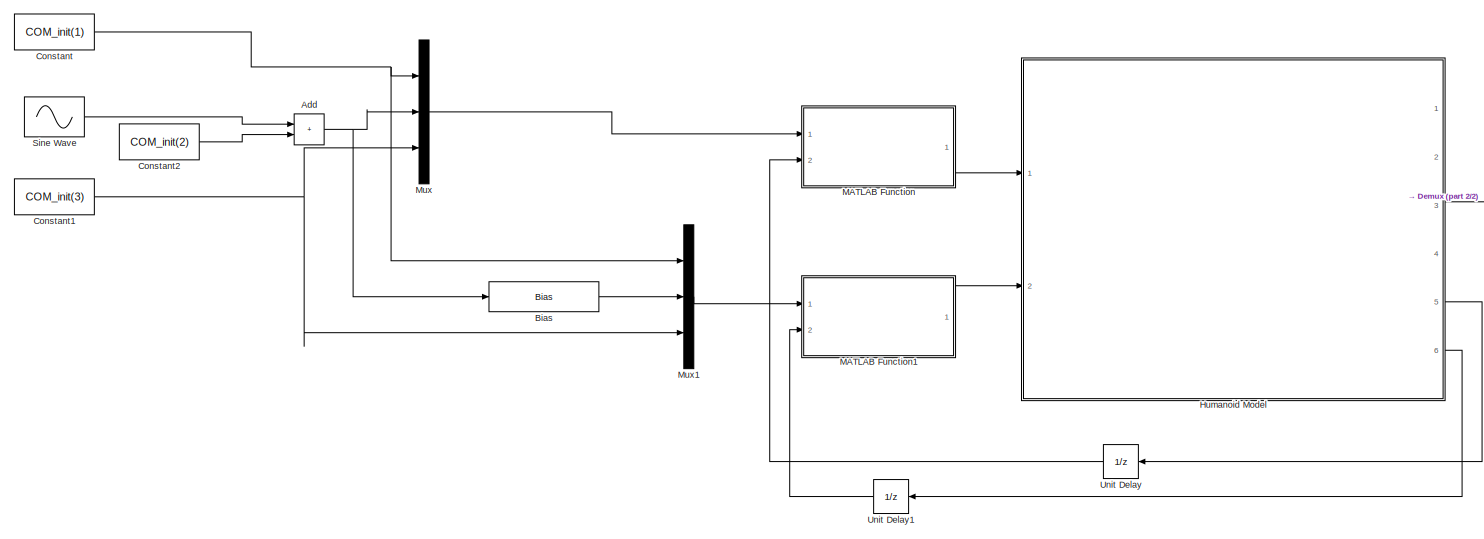
[diagram: root canvas - part 1/2, most of the canvas]
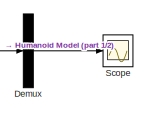
[diagram: root canvas - part 2/2, middle right region]
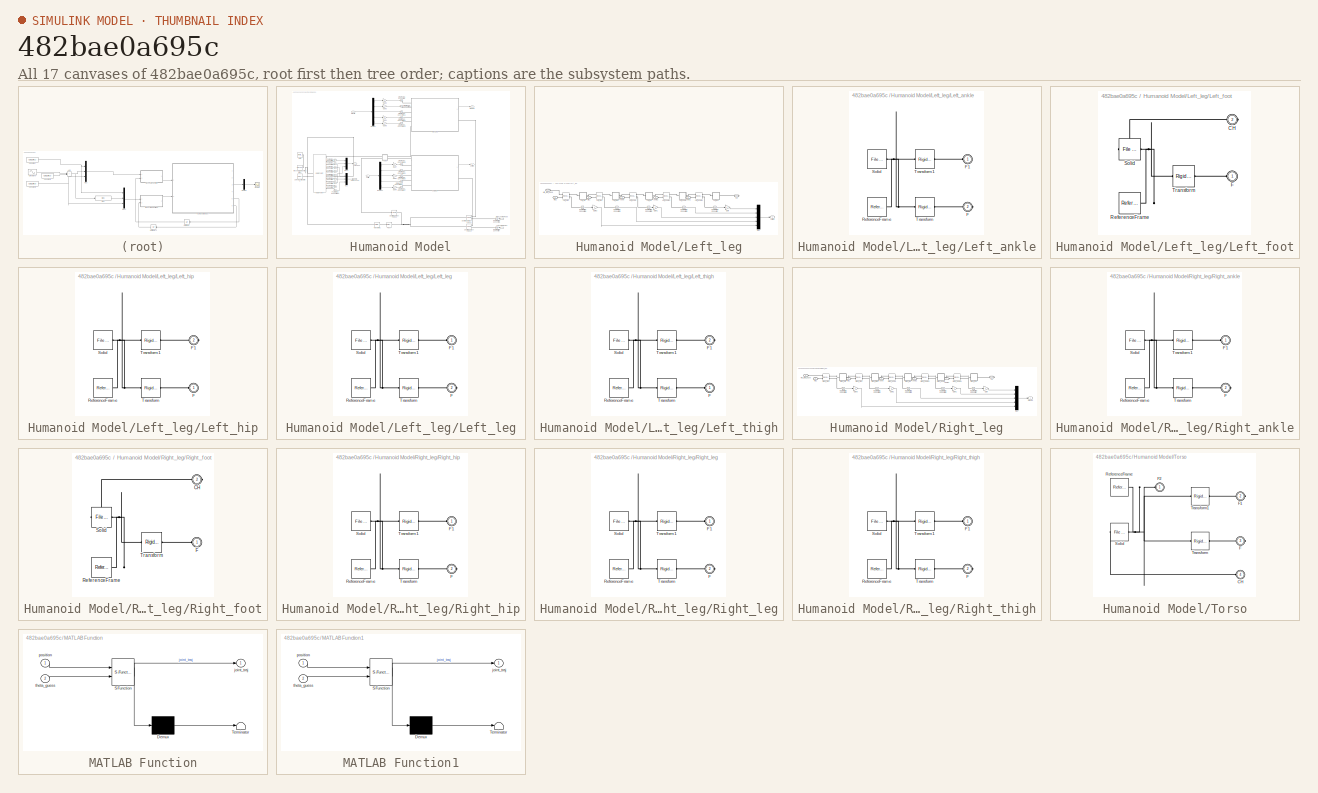
[diagram: thumbnail index - all 17 canvases of the model, root first then tree order]
MODEL slx_482bae0a695c
KIND model
CONFIG AbsTol = auto
CONFIG EnableMultiTasking = off
CONFIG FixedStep = 1e-3
CONFIG InitFcn = samanoid_init;
CONFIG MaxStep = auto
CONFIG MinStep = auto
CONFIG RelTol = 1e-3
CONFIG SampleTimeConstraint = Unconstrained
CONFIG SolverName = FixedStepAuto
CONFIG StartTime = 0.0
CONFIG StopTime = 10.0
WORKSPACE source: external: MATLAB File  (data not in archive)
BLOCK [Sum] Add
  IconShape = rectangular
  Ports = [2, 1]
BLOCK [Bias] Bias
  Bias = -2*COM_init(2)
  SaturateOnIntegerOverflow = off
BLOCK [Constant] Constant
  Value = COM_init(1)
BLOCK [Constant] Constant1
  Value = COM_init(3)
BLOCK [Constant] Constant2
  Value = COM_init(2)
BLOCK [Demux] Demux
  Outputs = 3
  Ports = [1, 3]
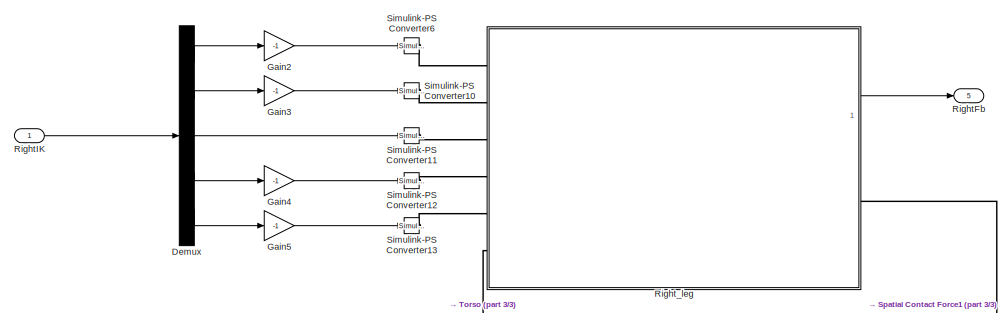
[diagram: Humanoid Model - part 1/3, top center region]
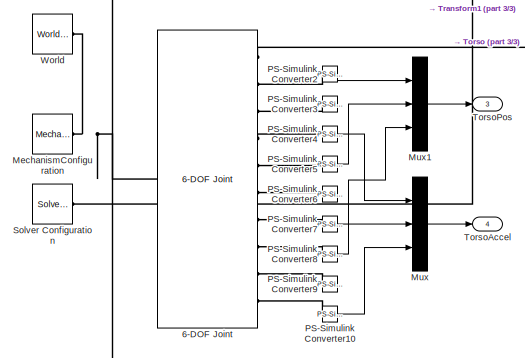
[diagram: Humanoid Model - part 2/3, middle left region]
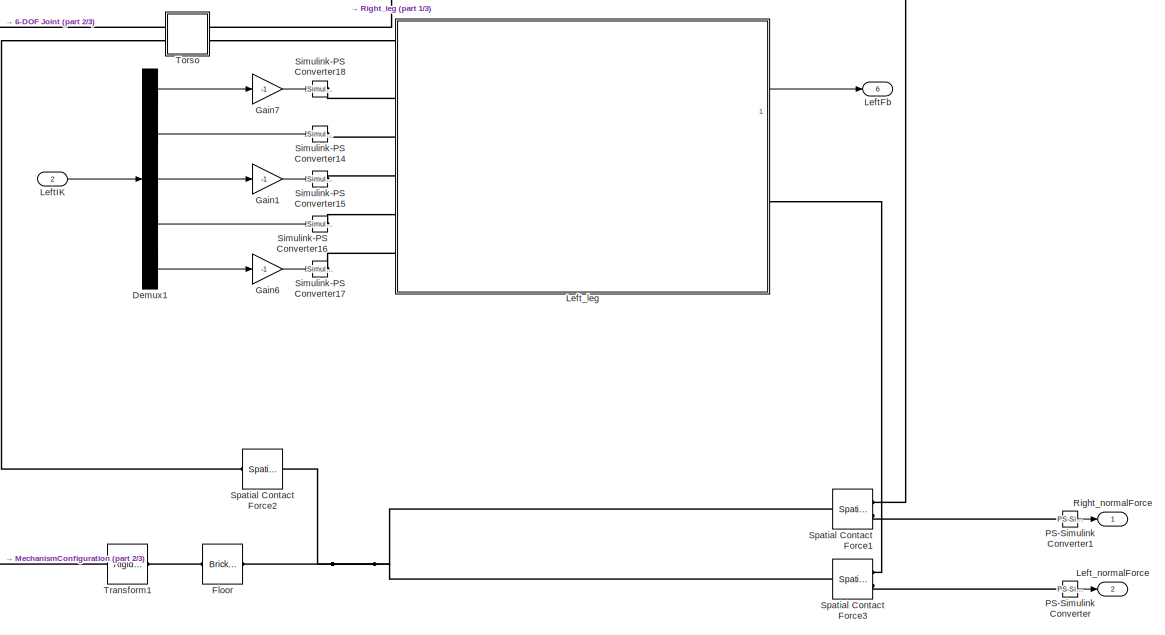
[diagram: Humanoid Model - part 3/3, bottom center region]
BLOCK [SubSystem] Humanoid Model
  Ports = [2, 6]
  RequestExecContextInheritance = off
BLOCK [Reference] Humanoid Model/6-DOF Joint  REF=sm_lib/Joints/6-DOF Joint
  Ports = [0, 0, 0, 0, 0, 1, 10]
  SourceBlock = sm_lib/Joints/6-DOF Joint
  SourceProductBaseCode = MS
  SourceType = 6-DOF Joint
BLOCK [Demux] Humanoid Model/Demux
  Outputs = 5
  Ports = [1, 5]
BLOCK [Demux] Humanoid Model/Demux1
  Outputs = 5
  Ports = [1, 5]
BLOCK [Reference] Humanoid Model/Floor  REF=sm_lib/Body Elements/Brick Solid
  NameLocation = top
  Ports = [0, 0, 0, 0, 0, 1, 1]
  SourceBlock = sm_lib/Body Elements/Brick Solid
  SourceProductBaseCode = MS
  SourceType = Brick Solid
BLOCK [Gain] Humanoid Model/Gain1
  Gain = -1
BLOCK [Gain] Humanoid Model/Gain2
  Gain = -1
BLOCK [Gain] Humanoid Model/Gain3
  Gain = -1
BLOCK [Gain] Humanoid Model/Gain4
  Gain = -1
BLOCK [Gain] Humanoid Model/Gain5
  Gain = -1
BLOCK [Gain] Humanoid Model/Gain6
  Gain = -1
BLOCK [Gain] Humanoid Model/Gain7
  Gain = -1
BLOCK [Outport] Humanoid Model/LeftFb
  Port = 6
BLOCK [Inport] Humanoid Model/LeftIK
  Port = 2
BLOCK [SubSystem] Humanoid Model/Left_leg
  Ports = [0, 1, 0, 0, 0, 6, 1]
  RequestExecContextInheritance = off
BLOCK [PMIOPort] Humanoid Model/Left_leg/Ankle1
  Port = 2
  Side = Left
BLOCK [PMIOPort] Humanoid Model/Left_leg/Ankle2
  Port = 3
  Side = Left
BLOCK [PMIOPort] Humanoid Model/Left_leg/CH
  NameLocation = top
  Port = 7
  Side = Right
BLOCK [Gain] Humanoid Model/Left_leg/Gain
  Gain = -1
BLOCK [Gain] Humanoid Model/Left_leg/Gain1
  Gain = -1
BLOCK [Gain] Humanoid Model/Left_leg/Gain3
  Gain = -1
BLOCK [PMIOPort] Humanoid Model/Left_leg/Hip1
  Port = 5
  Side = Left
BLOCK [PMIOPort] Humanoid Model/Left_leg/Hip2
  Port = 6
  Side = Left
BLOCK [PMIOPort] Humanoid Model/Left_leg/Hip_joint_base
  Side = Left
BLOCK [PMIOPort] Humanoid Model/Left_leg/Knee
  Port = 4
  Side = Left
BLOCK [Outport] Humanoid Model/Left_leg/LeftFb
BLOCK [SubSystem] Humanoid Model/Left_leg/Left_ankle
  Ports = [0, 0, 0, 0, 0, 1, 1]
  RequestExecContextInheritance = off
BLOCK [PMIOPort] Humanoid Model/Left_leg/Left_ankle/F
  Port = 2
  Side = Right
BLOCK [PMIOPort] Humanoid Model/Left_leg/Left_ankle/F1
  Side = Left
BLOCK [Reference] Humanoid Model/Left_leg/Left_ankle/ReferenceFrame  REF=sm_lib/Frames and
Transforms/Reference
Frame
  Ports = [0, 0, 0, 0, 0, 0, 1]
  SourceBlock = sm_lib/Frames and\nTransforms/Reference\nFrame
  SourceProductBaseCode = MS
  SourceType = Reference\nFrame
BLOCK [Reference] Humanoid Model/Left_leg/Left_ankle/Solid  REF=sm_lib/Body Elements/File Solid
  Ports = [0, 0, 0, 0, 0, 0, 1]
  SourceBlock = sm_lib/Body Elements/File Solid
  SourceProductBaseCode = MS
  SourceType = File Solid
BLOCK [Reference] Humanoid Model/Left_leg/Left_ankle/Transform  REF=sm_lib/Frames and
Transforms/Rigid
Transform
  Ports = [0, 0, 0, 0, 0, 1, 1]
  SourceBlock = sm_lib/Frames and\nTransforms/Rigid\nTransform
  SourceProductBaseCode = MS
  SourceType = Rigid\nTransform
BLOCK [Reference] Humanoid Model/Left_leg/Left_ankle/Transform1  REF=sm_lib/Frames and
Transforms/Rigid
Transform
  Ports = [0, 0, 0, 0, 0, 1, 1]
  SourceBlock = sm_lib/Frames and\nTransforms/Rigid\nTransform
  SourceProductBaseCode = MS
  SourceType = Rigid\nTransform
BLOCK [Reference] Humanoid Model/Left_leg/Left_ankle1  REF=sm_lib/Joints/Revolute Joint
  Ports = [0, 0, 0, 0, 0, 2, 2]
  SourceBlock = sm_lib/Joints/Revolute Joint
  SourceProductBaseCode = MS
  SourceType = Revolute Joint
BLOCK [Reference] Humanoid Model/Left_leg/Left_ankle2  REF=sm_lib/Joints/Revolute Joint
  Ports = [0, 0, 0, 0, 0, 2, 2]
  SourceBlock = sm_lib/Joints/Revolute Joint
  SourceProductBaseCode = MS
  SourceType = Revolute Joint
BLOCK [SubSystem] Humanoid Model/Left_leg/Left_foot
  Ports = [0, 0, 0, 0, 0, 1, 1]
  RequestExecContextInheritance = off
BLOCK [PMIOPort] Humanoid Model/Left_leg/Left_foot/CH
  Port = 2
  Side = Right
BLOCK [PMIOPort] Humanoid Model/Left_leg/Left_foot/F
  Side = Left
BLOCK [Reference] Humanoid Model/Left_leg/Left_foot/ReferenceFrame  REF=sm_lib/Frames and
Transforms/Reference
Frame
  Ports = [0, 0, 0, 0, 0, 0, 1]
  SourceBlock = sm_lib/Frames and\nTransforms/Reference\nFrame
  SourceProductBaseCode = MS
  SourceType = Reference\nFrame
BLOCK [Reference] Humanoid Model/Left_leg/Left_foot/Solid  REF=sm_lib/Body Elements/File Solid
  Ports = [0, 0, 0, 0, 0, 1, 1]
  SourceBlock = sm_lib/Body Elements/File Solid
  SourceProductBaseCode = MS
  SourceType = File Solid
BLOCK [Reference] Humanoid Model/Left_leg/Left_foot/Transform  REF=sm_lib/Frames and
Transforms/Rigid
Transform
  Ports = [0, 0, 0, 0, 0, 1, 1]
  SourceBlock = sm_lib/Frames and\nTransforms/Rigid\nTransform
  SourceProductBaseCode = MS
  SourceType = Rigid\nTransform
BLOCK [SubSystem] Humanoid Model/Left_leg/Left_hip
  Ports = [0, 0, 0, 0, 0, 1, 1]
  RequestExecContextInheritance = off
BLOCK [PMIOPort] Humanoid Model/Left_leg/Left_hip/F
  Side = Left
BLOCK [PMIOPort] Humanoid Model/Left_leg/Left_hip/F1
  Port = 2
  Side = Right
BLOCK [Reference] Humanoid Model/Left_leg/Left_hip/ReferenceFrame  REF=sm_lib/Frames and
Transforms/Reference
Frame
  Ports = [0, 0, 0, 0, 0, 0, 1]
  SourceBlock = sm_lib/Frames and\nTransforms/Reference\nFrame
  SourceProductBaseCode = MS
  SourceType = Reference\nFrame
BLOCK [Reference] Humanoid Model/Left_leg/Left_hip/Solid  REF=sm_lib/Body Elements/File Solid
  Ports = [0, 0, 0, 0, 0, 0, 1]
  SourceBlock = sm_lib/Body Elements/File Solid
  SourceProductBaseCode = MS
  SourceType = File Solid
BLOCK [Reference] Humanoid Model/Left_leg/Left_hip/Transform  REF=sm_lib/Frames and
Transforms/Rigid
Transform
  Ports = [0, 0, 0, 0, 0, 1, 1]
  SourceBlock = sm_lib/Frames and\nTransforms/Rigid\nTransform
  SourceProductBaseCode = MS
  SourceType = Rigid\nTransform
BLOCK [Reference] Humanoid Model/Left_leg/Left_hip/Transform1  REF=sm_lib/Frames and
Transforms/Rigid
Transform
  Ports = [0, 0, 0, 0, 0, 1, 1]
  SourceBlock = sm_lib/Frames and\nTransforms/Rigid\nTransform
  SourceProductBaseCode = MS
  SourceType = Rigid\nTransform
BLOCK [Reference] Humanoid Model/Left_leg/Left_hip1  REF=sm_lib/Joints/Revolute Joint
  Ports = [0, 0, 0, 0, 0, 2, 2]
  SourceBlock = sm_lib/Joints/Revolute Joint
  SourceProductBaseCode = MS
  SourceType = Revolute Joint
BLOCK [Reference] Humanoid Model/Left_leg/Left_hip2  REF=sm_lib/Joints/Revolute Joint
  Ports = [0, 0, 0, 0, 0, 2, 2]
  SourceBlock = sm_lib/Joints/Revolute Joint
  SourceProductBaseCode = MS
  SourceType = Revolute Joint
BLOCK [Reference] Humanoid Model/Left_leg/Left_knee  REF=sm_lib/Joints/Revolute Joint
  Ports = [0, 0, 0, 0, 0, 2, 2]
  SourceBlock = sm_lib/Joints/Revolute Joint
  SourceProductBaseCode = MS
  SourceType = Revolute Joint
BLOCK [SubSystem] Humanoid Model/Left_leg/Left_leg
  Ports = [0, 0, 0, 0, 0, 1, 1]
  RequestExecContextInheritance = off
BLOCK [PMIOPort] Humanoid Model/Left_leg/Left_leg/F
  Port = 2
  Side = Right
BLOCK [PMIOPort] Humanoid Model/Left_leg/Left_leg/F1
  Side = Left
BLOCK [Reference] Humanoid Model/Left_leg/Left_leg/ReferenceFrame  REF=sm_lib/Frames and
Transforms/Reference
Frame
  Ports = [0, 0, 0, 0, 0, 0, 1]
  SourceBlock = sm_lib/Frames and\nTransforms/Reference\nFrame
  SourceProductBaseCode = MS
  SourceType = Reference\nFrame
BLOCK [Reference] Humanoid Model/Left_leg/Left_leg/Solid  REF=sm_lib/Body Elements/File Solid
  Ports = [0, 0, 0, 0, 0, 0, 1]
  SourceBlock = sm_lib/Body Elements/File Solid
  SourceProductBaseCode = MS
  SourceType = File Solid
BLOCK [Reference] Humanoid Model/Left_leg/Left_leg/Transform  REF=sm_lib/Frames and
Transforms/Rigid
Transform
  Ports = [0, 0, 0, 0, 0, 1, 1]
  SourceBlock = sm_lib/Frames and\nTransforms/Rigid\nTransform
  SourceProductBaseCode = MS
  SourceType = Rigid\nTransform
BLOCK [Reference] Humanoid Model/Left_leg/Left_leg/Transform1  REF=sm_lib/Frames and
Transforms/Rigid
Transform
  Ports = [0, 0, 0, 0, 0, 1, 1]
  SourceBlock = sm_lib/Frames and\nTransforms/Rigid\nTransform
  SourceProductBaseCode = MS
  SourceType = Rigid\nTransform
BLOCK [SubSystem] Humanoid Model/Left_leg/Left_thigh
  Ports = [0, 0, 0, 0, 0, 1, 1]
  RequestExecContextInheritance = off
BLOCK [PMIOPort] Humanoid Model/Left_leg/Left_thigh/F
  Side = Left
BLOCK [PMIOPort] Humanoid Model/Left_leg/Left_thigh/F1
  Port = 2
  Side = Right
BLOCK [Reference] Humanoid Model/Left_leg/Left_thigh/ReferenceFrame  REF=sm_lib/Frames and
Transforms/Reference
Frame
  Ports = [0, 0, 0, 0, 0, 0, 1]
  SourceBlock = sm_lib/Frames and\nTransforms/Reference\nFrame
  SourceProductBaseCode = MS
  SourceType = Reference\nFrame
BLOCK [Reference] Humanoid Model/Left_leg/Left_thigh/Solid  REF=sm_lib/Body Elements/File Solid
  Ports = [0, 0, 0, 0, 0, 0, 1]
  SourceBlock = sm_lib/Body Elements/File Solid
  SourceProductBaseCode = MS
  SourceType = File Solid
BLOCK [Reference] Humanoid Model/Left_leg/Left_thigh/Transform  REF=sm_lib/Frames and
Transforms/Rigid
Transform
  Ports = [0, 0, 0, 0, 0, 1, 1]
  SourceBlock = sm_lib/Frames and\nTransforms/Rigid\nTransform
  SourceProductBaseCode = MS
  SourceType = Rigid\nTransform
BLOCK [Reference] Humanoid Model/Left_leg/Left_thigh/Transform1  REF=sm_lib/Frames and
Transforms/Rigid
Transform
  Ports = [0, 0, 0, 0, 0, 1, 1]
  SourceBlock = sm_lib/Frames and\nTransforms/Rigid\nTransform
  SourceProductBaseCode = MS
  SourceType = Rigid\nTransform
BLOCK [Mux] Humanoid Model/Left_leg/Mux
  DisplayOption = bar
  Inputs = 5
  Ports = [5, 1]
BLOCK [Reference] Humanoid Model/Left_leg/PS-Simulink Converter  REF=nesl_utility/PS-Simulink
Converter
  Ports = [0, 1, 0, 0, 0, 1]
  SourceBlock = nesl_utility/PS-Simulink\nConverter
  SourceProductBaseCode = SS,PW,VE
  SourceType = PS-Simulink\nConverter
BLOCK [Reference] Humanoid Model/Left_leg/PS-Simulink Converter1  REF=nesl_utility/PS-Simulink
Converter
  Ports = [0, 1, 0, 0, 0, 1]
  SourceBlock = nesl_utility/PS-Simulink\nConverter
  SourceProductBaseCode = SS,PW,VE
  SourceType = PS-Simulink\nConverter
BLOCK [Reference] Humanoid Model/Left_leg/PS-Simulink Converter2  REF=nesl_utility/PS-Simulink
Converter
  Ports = [0, 1, 0, 0, 0, 1]
  SourceBlock = nesl_utility/PS-Simulink\nConverter
  SourceProductBaseCode = SS,PW,VE
  SourceType = PS-Simulink\nConverter
BLOCK [Reference] Humanoid Model/Left_leg/PS-Simulink Converter3  REF=nesl_utility/PS-Simulink
Converter
  Ports = [0, 1, 0, 0, 0, 1]
  SourceBlock = nesl_utility/PS-Simulink\nConverter
  SourceProductBaseCode = SS,PW,VE
  SourceType = PS-Simulink\nConverter
BLOCK [Reference] Humanoid Model/Left_leg/PS-Simulink Converter4  REF=nesl_utility/PS-Simulink
Converter
  Ports = [0, 1, 0, 0, 0, 1]
  SourceBlock = nesl_utility/PS-Simulink\nConverter
  SourceProductBaseCode = SS,PW,VE
  SourceType = PS-Simulink\nConverter
BLOCK [Outport] Humanoid Model/Left_normalForce
  Port = 2
BLOCK [Reference] Humanoid Model/MechanismConfiguration  REF=sm_lib/Utilities/Mechanism
Configuration
  Ports = [0, 0, 0, 0, 0, 0, 1]
  SourceBlock = sm_lib/Utilities/Mechanism\nConfiguration
  SourceProductBaseCode = MS
  SourceType = Mechanism\nConfiguration
BLOCK [Mux] Humanoid Model/Mux
  DisplayOption = bar
  Inputs = 3
  Ports = [3, 1]
BLOCK [Mux] Humanoid Model/Mux1
  DisplayOption = bar
  Inputs = 3
  Ports = [3, 1]
BLOCK [Reference] Humanoid Model/PS-Simulink Converter  REF=nesl_utility/PS-Simulink
Converter
  Ports = [0, 1, 0, 0, 0, 1]
  SourceBlock = nesl_utility/PS-Simulink\nConverter
  SourceProductBaseCode = SS,PW,VE
  SourceType = PS-Simulink\nConverter
BLOCK [Reference] Humanoid Model/PS-Simulink Converter1  REF=nesl_utility/PS-Simulink
Converter
  Ports = [0, 1, 0, 0, 0, 1]
  SourceBlock = nesl_utility/PS-Simulink\nConverter
  SourceProductBaseCode = SS,PW,VE
  SourceType = PS-Simulink\nConverter
BLOCK [Reference] Humanoid Model/PS-Simulink Converter10  REF=nesl_utility/PS-Simulink
Converter
  Ports = [0, 1, 0, 0, 0, 1]
  SourceBlock = nesl_utility/PS-Simulink\nConverter
  SourceProductBaseCode = SS,PW,VE
  SourceType = PS-Simulink\nConverter
BLOCK [Reference] Humanoid Model/PS-Simulink Converter2  REF=nesl_utility/PS-Simulink
Converter
  Ports = [0, 1, 0, 0, 0, 1]
  SourceBlock = nesl_utility/PS-Simulink\nConverter
  SourceProductBaseCode = SS,PW,VE
  SourceType = PS-Simulink\nConverter
BLOCK [Reference] Humanoid Model/PS-Simulink Converter3  REF=nesl_utility/PS-Simulink
Converter
  Ports = [0, 1, 0, 0, 0, 1]
  SourceBlock = nesl_utility/PS-Simulink\nConverter
  SourceProductBaseCode = SS,PW,VE
  SourceType = PS-Simulink\nConverter
BLOCK [Reference] Humanoid Model/PS-Simulink Converter4  REF=nesl_utility/PS-Simulink
Converter
  Ports = [0, 1, 0, 0, 0, 1]
  SourceBlock = nesl_utility/PS-Simulink\nConverter
  SourceProductBaseCode = SS,PW,VE
  SourceType = PS-Simulink\nConverter
BLOCK [Reference] Humanoid Model/PS-Simulink Converter5  REF=nesl_utility/PS-Simulink
Converter
  Ports = [0, 1, 0, 0, 0, 1]
  SourceBlock = nesl_utility/PS-Simulink\nConverter
  SourceProductBaseCode = SS,PW,VE
  SourceType = PS-Simulink\nConverter
BLOCK [Reference] Humanoid Model/PS-Simulink Converter6  REF=nesl_utility/PS-Simulink
Converter
  Ports = [0, 1, 0, 0, 0, 1]
  SourceBlock = nesl_utility/PS-Simulink\nConverter
  SourceProductBaseCode = SS,PW,VE
  SourceType = PS-Simulink\nConverter
BLOCK [Reference] Humanoid Model/PS-Simulink Converter7  REF=nesl_utility/PS-Simulink
Converter
  Ports = [0, 1, 0, 0, 0, 1]
  SourceBlock = nesl_utility/PS-Simulink\nConverter
  SourceProductBaseCode = SS,PW,VE
  SourceType = PS-Simulink\nConverter
BLOCK [Reference] Humanoid Model/PS-Simulink Converter8  REF=nesl_utility/PS-Simulink
Converter
  Ports = [0, 1, 0, 0, 0, 1]
  SourceBlock = nesl_utility/PS-Simulink\nConverter
  SourceProductBaseCode = SS,PW,VE
  SourceType = PS-Simulink\nConverter
BLOCK [Reference] Humanoid Model/PS-Simulink Converter9  REF=nesl_utility/PS-Simulink
Converter
  Ports = [0, 1, 0, 0, 0, 1]
  SourceBlock = nesl_utility/PS-Simulink\nConverter
  SourceProductBaseCode = SS,PW,VE
  SourceType = PS-Simulink\nConverter
BLOCK [Outport] Humanoid Model/RightFb
  Port = 5
BLOCK [Inport] Humanoid Model/RightIK
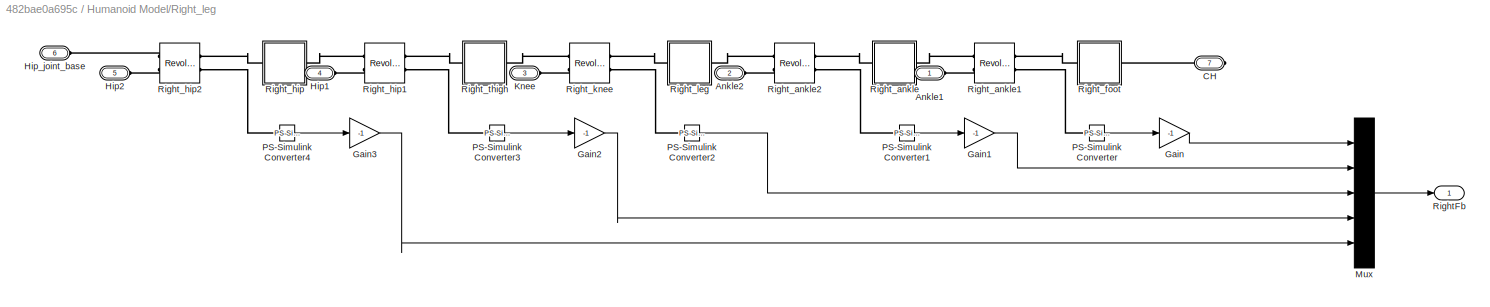
BLOCK [SubSystem] Humanoid Model/Right_leg
  Ports = [0, 1, 0, 0, 0, 6, 1]
  RequestExecContextInheritance = off
BLOCK [PMIOPort] Humanoid Model/Right_leg/Ankle1
  Side = Left
BLOCK [PMIOPort] Humanoid Model/Right_leg/Ankle2
  Port = 2
  Side = Left
BLOCK [PMIOPort] Humanoid Model/Right_leg/CH
  NameLocation = top
  Port = 7
  Side = Right
BLOCK [Gain] Humanoid Model/Right_leg/Gain
  Gain = -1
BLOCK [Gain] Humanoid Model/Right_leg/Gain1
  Gain = -1
BLOCK [Gain] Humanoid Model/Right_leg/Gain2
  Gain = -1
BLOCK [Gain] Humanoid Model/Right_leg/Gain3
  Gain = -1
BLOCK [PMIOPort] Humanoid Model/Right_leg/Hip1
  Port = 4
  Side = Left
BLOCK [PMIOPort] Humanoid Model/Right_leg/Hip2
  Port = 5
  Side = Left
BLOCK [PMIOPort] Humanoid Model/Right_leg/Hip_joint_base
  Port = 6
  Side = Left
BLOCK [PMIOPort] Humanoid Model/Right_leg/Knee
  Port = 3
  Side = Left
BLOCK [Mux] Humanoid Model/Right_leg/Mux
  DisplayOption = bar
  Inputs = 5
  Ports = [5, 1]
BLOCK [Reference] Humanoid Model/Right_leg/PS-Simulink Converter  REF=nesl_utility/PS-Simulink
Converter
  Ports = [0, 1, 0, 0, 0, 1]
  SourceBlock = nesl_utility/PS-Simulink\nConverter
  SourceProductBaseCode = SS,PW,VE
  SourceType = PS-Simulink\nConverter
BLOCK [Reference] Humanoid Model/Right_leg/PS-Simulink Converter1  REF=nesl_utility/PS-Simulink
Converter
  Ports = [0, 1, 0, 0, 0, 1]
  SourceBlock = nesl_utility/PS-Simulink\nConverter
  SourceProductBaseCode = SS,PW,VE
  SourceType = PS-Simulink\nConverter
BLOCK [Reference] Humanoid Model/Right_leg/PS-Simulink Converter2  REF=nesl_utility/PS-Simulink
Converter
  Ports = [0, 1, 0, 0, 0, 1]
  SourceBlock = nesl_utility/PS-Simulink\nConverter
  SourceProductBaseCode = SS,PW,VE
  SourceType = PS-Simulink\nConverter
BLOCK [Reference] Humanoid Model/Right_leg/PS-Simulink Converter3  REF=nesl_utility/PS-Simulink
Converter
  Ports = [0, 1, 0, 0, 0, 1]
  SourceBlock = nesl_utility/PS-Simulink\nConverter
  SourceProductBaseCode = SS,PW,VE
  SourceType = PS-Simulink\nConverter
BLOCK [Reference] Humanoid Model/Right_leg/PS-Simulink Converter4  REF=nesl_utility/PS-Simulink
Converter
  Ports = [0, 1, 0, 0, 0, 1]
  SourceBlock = nesl_utility/PS-Simulink\nConverter
  SourceProductBaseCode = SS,PW,VE
  SourceType = PS-Simulink\nConverter
BLOCK [Outport] Humanoid Model/Right_leg/RightFb
BLOCK [SubSystem] Humanoid Model/Right_leg/Right_ankle
  Ports = [0, 0, 0, 0, 0, 1, 1]
  RequestExecContextInheritance = off
BLOCK [PMIOPort] Humanoid Model/Right_leg/Right_ankle/F
  Port = 2
  Side = Right
BLOCK [PMIOPort] Humanoid Model/Right_leg/Right_ankle/F1
  Side = Left
BLOCK [Reference] Humanoid Model/Right_leg/Right_ankle/ReferenceFrame  REF=sm_lib/Frames and
Transforms/Reference
Frame
  Ports = [0, 0, 0, 0, 0, 0, 1]
  SourceBlock = sm_lib/Frames and\nTransforms/Reference\nFrame
  SourceProductBaseCode = MS
  SourceType = Reference\nFrame
BLOCK [Reference] Humanoid Model/Right_leg/Right_ankle/Solid  REF=sm_lib/Body Elements/File Solid
  Ports = [0, 0, 0, 0, 0, 0, 1]
  SourceBlock = sm_lib/Body Elements/File Solid
  SourceProductBaseCode = MS
  SourceType = File Solid
BLOCK [Reference] Humanoid Model/Right_leg/Right_ankle/Transform  REF=sm_lib/Frames and
Transforms/Rigid
Transform
  Ports = [0, 0, 0, 0, 0, 1, 1]
  SourceBlock = sm_lib/Frames and\nTransforms/Rigid\nTransform
  SourceProductBaseCode = MS
  SourceType = Rigid\nTransform
BLOCK [Reference] Humanoid Model/Right_leg/Right_ankle/Transform1  REF=sm_lib/Frames and
Transforms/Rigid
Transform
  Ports = [0, 0, 0, 0, 0, 1, 1]
  SourceBlock = sm_lib/Frames and\nTransforms/Rigid\nTransform
  SourceProductBaseCode = MS
  SourceType = Rigid\nTransform
BLOCK [Reference] Humanoid Model/Right_leg/Right_ankle1  REF=sm_lib/Joints/Revolute Joint
  Ports = [0, 0, 0, 0, 0, 2, 2]
  SourceBlock = sm_lib/Joints/Revolute Joint
  SourceProductBaseCode = MS
  SourceType = Revolute Joint
BLOCK [Reference] Humanoid Model/Right_leg/Right_ankle2  REF=sm_lib/Joints/Revolute Joint
  Ports = [0, 0, 0, 0, 0, 2, 2]
  SourceBlock = sm_lib/Joints/Revolute Joint
  SourceProductBaseCode = MS
  SourceType = Revolute Joint
BLOCK [SubSystem] Humanoid Model/Right_leg/Right_foot
  Ports = [0, 0, 0, 0, 0, 1, 1]
  RequestExecContextInheritance = off
BLOCK [PMIOPort] Humanoid Model/Right_leg/Right_foot/CH
  Port = 2
  Side = Right
BLOCK [PMIOPort] Humanoid Model/Right_leg/Right_foot/F
  Side = Left
BLOCK [Reference] Humanoid Model/Right_leg/Right_foot/ReferenceFrame  REF=sm_lib/Frames and
Transforms/Reference
Frame
  Ports = [0, 0, 0, 0, 0, 0, 1]
  SourceBlock = sm_lib/Frames and\nTransforms/Reference\nFrame
  SourceProductBaseCode = MS
  SourceType = Reference\nFrame
BLOCK [Reference] Humanoid Model/Right_leg/Right_foot/Solid  REF=sm_lib/Body Elements/File Solid
  Ports = [0, 0, 0, 0, 0, 1, 1]
  SourceBlock = sm_lib/Body Elements/File Solid
  SourceProductBaseCode = MS
  SourceType = File Solid
BLOCK [Reference] Humanoid Model/Right_leg/Right_foot/Transform  REF=sm_lib/Frames and
Transforms/Rigid
Transform
  Ports = [0, 0, 0, 0, 0, 1, 1]
  SourceBlock = sm_lib/Frames and\nTransforms/Rigid\nTransform
  SourceProductBaseCode = MS
  SourceType = Rigid\nTransform
BLOCK [SubSystem] Humanoid Model/Right_leg/Right_hip
  Ports = [0, 0, 0, 0, 0, 1, 1]
  RequestExecContextInheritance = off
BLOCK [PMIOPort] Humanoid Model/Right_leg/Right_hip/F
  Port = 2
  Side = Right
BLOCK [PMIOPort] Humanoid Model/Right_leg/Right_hip/F1
  Side = Left
BLOCK [Reference] Humanoid Model/Right_leg/Right_hip/ReferenceFrame  REF=sm_lib/Frames and
Transforms/Reference
Frame
  Ports = [0, 0, 0, 0, 0, 0, 1]
  SourceBlock = sm_lib/Frames and\nTransforms/Reference\nFrame
  SourceProductBaseCode = MS
  SourceType = Reference\nFrame
BLOCK [Reference] Humanoid Model/Right_leg/Right_hip/Solid  REF=sm_lib/Body Elements/File Solid
  Ports = [0, 0, 0, 0, 0, 0, 1]
  SourceBlock = sm_lib/Body Elements/File Solid
  SourceProductBaseCode = MS
  SourceType = File Solid
BLOCK [Reference] Humanoid Model/Right_leg/Right_hip/Transform  REF=sm_lib/Frames and
Transforms/Rigid
Transform
  Ports = [0, 0, 0, 0, 0, 1, 1]
  SourceBlock = sm_lib/Frames and\nTransforms/Rigid\nTransform
  SourceProductBaseCode = MS
  SourceType = Rigid\nTransform
BLOCK [Reference] Humanoid Model/Right_leg/Right_hip/Transform1  REF=sm_lib/Frames and
Transforms/Rigid
Transform
  Ports = [0, 0, 0, 0, 0, 1, 1]
  SourceBlock = sm_lib/Frames and\nTransforms/Rigid\nTransform
  SourceProductBaseCode = MS
  SourceType = Rigid\nTransform
BLOCK [Reference] Humanoid Model/Right_leg/Right_hip1  REF=sm_lib/Joints/Revolute Joint
  Ports = [0, 0, 0, 0, 0, 2, 2]
  SourceBlock = sm_lib/Joints/Revolute Joint
  SourceProductBaseCode = MS
  SourceType = Revolute Joint
BLOCK [Reference] Humanoid Model/Right_leg/Right_hip2  REF=sm_lib/Joints/Revolute Joint
  Ports = [0, 0, 0, 0, 0, 2, 2]
  SourceBlock = sm_lib/Joints/Revolute Joint
  SourceProductBaseCode = MS
  SourceType = Revolute Joint
BLOCK [Reference] Humanoid Model/Right_leg/Right_knee  REF=sm_lib/Joints/Revolute Joint
  Ports = [0, 0, 0, 0, 0, 2, 2]
  SourceBlock = sm_lib/Joints/Revolute Joint
  SourceProductBaseCode = MS
  SourceType = Revolute Joint
BLOCK [SubSystem] Humanoid Model/Right_leg/Right_leg
  Ports = [0, 0, 0, 0, 0, 1, 1]
  RequestExecContextInheritance = off
BLOCK [PMIOPort] Humanoid Model/Right_leg/Right_leg/F
  Port = 2
  Side = Right
BLOCK [PMIOPort] Humanoid Model/Right_leg/Right_leg/F1
  Side = Left
BLOCK [Reference] Humanoid Model/Right_leg/Right_leg/ReferenceFrame  REF=sm_lib/Frames and
Transforms/Reference
Frame
  Ports = [0, 0, 0, 0, 0, 0, 1]
  SourceBlock = sm_lib/Frames and\nTransforms/Reference\nFrame
  SourceProductBaseCode = MS
  SourceType = Reference\nFrame
BLOCK [Reference] Humanoid Model/Right_leg/Right_leg/Solid  REF=sm_lib/Body Elements/File Solid
  Ports = [0, 0, 0, 0, 0, 0, 1]
  SourceBlock = sm_lib/Body Elements/File Solid
  SourceProductBaseCode = MS
  SourceType = File Solid
BLOCK [Reference] Humanoid Model/Right_leg/Right_leg/Transform  REF=sm_lib/Frames and
Transforms/Rigid
Transform
  Ports = [0, 0, 0, 0, 0, 1, 1]
  SourceBlock = sm_lib/Frames and\nTransforms/Rigid\nTransform
  SourceProductBaseCode = MS
  SourceType = Rigid\nTransform
BLOCK [Reference] Humanoid Model/Right_leg/Right_leg/Transform1  REF=sm_lib/Frames and
Transforms/Rigid
Transform
  Ports = [0, 0, 0, 0, 0, 1, 1]
  SourceBlock = sm_lib/Frames and\nTransforms/Rigid\nTransform
  SourceProductBaseCode = MS
  SourceType = Rigid\nTransform
BLOCK [SubSystem] Humanoid Model/Right_leg/Right_thigh
  Ports = [0, 0, 0, 0, 0, 1, 1]
  RequestExecContextInheritance = off
BLOCK [PMIOPort] Humanoid Model/Right_leg/Right_thigh/F
  Port = 2
  Side = Right
BLOCK [PMIOPort] Humanoid Model/Right_leg/Right_thigh/F1
  Side = Left
BLOCK [Reference] Humanoid Model/Right_leg/Right_thigh/ReferenceFrame  REF=sm_lib/Frames and
Transforms/Reference
Frame
  Ports = [0, 0, 0, 0, 0, 0, 1]
  SourceBlock = sm_lib/Frames and\nTransforms/Reference\nFrame
  SourceProductBaseCode = MS
  SourceType = Reference\nFrame
BLOCK [Reference] Humanoid Model/Right_leg/Right_thigh/Solid  REF=sm_lib/Body Elements/File Solid
  Ports = [0, 0, 0, 0, 0, 0, 1]
  SourceBlock = sm_lib/Body Elements/File Solid
  SourceProductBaseCode = MS
  SourceType = File Solid
BLOCK [Reference] Humanoid Model/Right_leg/Right_thigh/Transform  REF=sm_lib/Frames and
Transforms/Rigid
Transform
  Ports = [0, 0, 0, 0, 0, 1, 1]
  SourceBlock = sm_lib/Frames and\nTransforms/Rigid\nTransform
  SourceProductBaseCode = MS
  SourceType = Rigid\nTransform
BLOCK [Reference] Humanoid Model/Right_leg/Right_thigh/Transform1  REF=sm_lib/Frames and
Transforms/Rigid
Transform
  Ports = [0, 0, 0, 0, 0, 1, 1]
  SourceBlock = sm_lib/Frames and\nTransforms/Rigid\nTransform
  SourceProductBaseCode = MS
  SourceType = Rigid\nTransform
BLOCK [Outport] Humanoid Model/Right_normalForce
BLOCK [Reference] Humanoid Model/Simulink-PS Converter10  REF=nesl_utility/Simulink-PS
Converter
  Ports = [1, 0, 0, 0, 0, 0, 1]
  SourceBlock = nesl_utility/Simulink-PS\nConverter
  SourceProductBaseCode = SS,PW,VE
  SourceType = Simulink-PS\nConverter
BLOCK [Reference] Humanoid Model/Simulink-PS Converter11  REF=nesl_utility/Simulink-PS
Converter
  Ports = [1, 0, 0, 0, 0, 0, 1]
  SourceBlock = nesl_utility/Simulink-PS\nConverter
  SourceProductBaseCode = SS,PW,VE
  SourceType = Simulink-PS\nConverter
BLOCK [Reference] Humanoid Model/Simulink-PS Converter12  REF=nesl_utility/Simulink-PS
Converter
  Ports = [1, 0, 0, 0, 0, 0, 1]
  SourceBlock = nesl_utility/Simulink-PS\nConverter
  SourceProductBaseCode = SS,PW,VE
  SourceType = Simulink-PS\nConverter
BLOCK [Reference] Humanoid Model/Simulink-PS Converter13  REF=nesl_utility/Simulink-PS
Converter
  Ports = [1, 0, 0, 0, 0, 0, 1]
  SourceBlock = nesl_utility/Simulink-PS\nConverter
  SourceProductBaseCode = SS,PW,VE
  SourceType = Simulink-PS\nConverter
BLOCK [Reference] Humanoid Model/Simulink-PS Converter14  REF=nesl_utility/Simulink-PS
Converter
  Ports = [1, 0, 0, 0, 0, 0, 1]
  SourceBlock = nesl_utility/Simulink-PS\nConverter
  SourceProductBaseCode = SS,PW,VE
  SourceType = Simulink-PS\nConverter
BLOCK [Reference] Humanoid Model/Simulink-PS Converter15  REF=nesl_utility/Simulink-PS
Converter
  Ports = [1, 0, 0, 0, 0, 0, 1]
  SourceBlock = nesl_utility/Simulink-PS\nConverter
  SourceProductBaseCode = SS,PW,VE
  SourceType = Simulink-PS\nConverter
BLOCK [Reference] Humanoid Model/Simulink-PS Converter16  REF=nesl_utility/Simulink-PS
Converter
  Ports = [1, 0, 0, 0, 0, 0, 1]
  SourceBlock = nesl_utility/Simulink-PS\nConverter
  SourceProductBaseCode = SS,PW,VE
  SourceType = Simulink-PS\nConverter
BLOCK [Reference] Humanoid Model/Simulink-PS Converter17  REF=nesl_utility/Simulink-PS
Converter
  Ports = [1, 0, 0, 0, 0, 0, 1]
  SourceBlock = nesl_utility/Simulink-PS\nConverter
  SourceProductBaseCode = SS,PW,VE
  SourceType = Simulink-PS\nConverter
BLOCK [Reference] Humanoid Model/Simulink-PS Converter18  REF=nesl_utility/Simulink-PS
Converter
  Ports = [1, 0, 0, 0, 0, 0, 1]
  SourceBlock = nesl_utility/Simulink-PS\nConverter
  SourceProductBaseCode = SS,PW,VE
  SourceType = Simulink-PS\nConverter
BLOCK [Reference] Humanoid Model/Simulink-PS Converter6  REF=nesl_utility/Simulink-PS
Converter
  Ports = [1, 0, 0, 0, 0, 0, 1]
  SourceBlock = nesl_utility/Simulink-PS\nConverter
  SourceProductBaseCode = SS,PW,VE
  SourceType = Simulink-PS\nConverter
BLOCK [Reference] Humanoid Model/Solver Configuration  REF=nesl_utility/Solver
Configuration
  Ports = [0, 0, 0, 0, 0, 0, 1]
  SourceBlock = nesl_utility/Solver\nConfiguration
  SourceProductBaseCode = SS,PW,VE
  SourceType = Solver\nConfiguration
BLOCK [Reference] Humanoid Model/Spatial Contact Force1  REF=sm_lib/Forces and
Torques/Spatial
Contact Force
  Ports = [0, 0, 0, 0, 0, 1, 2]
  SourceBlock = sm_lib/Forces and\nTorques/Spatial\nContact Force
  SourceProductBaseCode = MS
  SourceType = Spatial\nContact Force
BLOCK [Reference] Humanoid Model/Spatial Contact Force2  REF=sm_lib/Forces and
Torques/Spatial
Contact Force
  NameLocation = top
  Ports = [0, 0, 0, 0, 0, 1, 1]
  SourceBlock = sm_lib/Forces and\nTorques/Spatial\nContact Force
  SourceProductBaseCode = MS
  SourceType = Spatial\nContact Force
BLOCK [Reference] Humanoid Model/Spatial Contact Force3  REF=sm_lib/Forces and
Torques/Spatial
Contact Force
  Ports = [0, 0, 0, 0, 0, 1, 2]
  SourceBlock = sm_lib/Forces and\nTorques/Spatial\nContact Force
  SourceProductBaseCode = MS
  SourceType = Spatial\nContact Force
BLOCK [SubSystem] Humanoid Model/Torso
  Ports = [0, 0, 0, 0, 0, 2, 2]
  RequestExecContextInheritance = off
BLOCK [PMIOPort] Humanoid Model/Torso/CH
  Port = 4
  Side = Left
BLOCK [PMIOPort] Humanoid Model/Torso/F
  Port = 3
  Side = Right
BLOCK [PMIOPort] Humanoid Model/Torso/F1
  Port = 2
  Side = Right
BLOCK [PMIOPort] Humanoid Model/Torso/F2
  Side = Left
BLOCK [Reference] Humanoid Model/Torso/ReferenceFrame  REF=sm_lib/Frames and
Transforms/Reference
Frame
  Ports = [0, 0, 0, 0, 0, 0, 1]
  SourceBlock = sm_lib/Frames and\nTransforms/Reference\nFrame
  SourceProductBaseCode = MS
  SourceType = Reference\nFrame
BLOCK [Reference] Humanoid Model/Torso/Solid  REF=sm_lib/Body Elements/File Solid
  Ports = [0, 0, 0, 0, 0, 1, 1]
  SourceBlock = sm_lib/Body Elements/File Solid
  SourceProductBaseCode = MS
  SourceType = File Solid
BLOCK [Reference] Humanoid Model/Torso/Transform  REF=sm_lib/Frames and
Transforms/Rigid
Transform
  Ports = [0, 0, 0, 0, 0, 1, 1]
  SourceBlock = sm_lib/Frames and\nTransforms/Rigid\nTransform
  SourceProductBaseCode = MS
  SourceType = Rigid\nTransform
BLOCK [Reference] Humanoid Model/Torso/Transform1  REF=sm_lib/Frames and
Transforms/Rigid
Transform
  Ports = [0, 0, 0, 0, 0, 1, 1]
  SourceBlock = sm_lib/Frames and\nTransforms/Rigid\nTransform
  SourceProductBaseCode = MS
  SourceType = Rigid\nTransform
BLOCK [Outport] Humanoid Model/TorsoAccel
  Port = 4
BLOCK [Outport] Humanoid Model/TorsoPos
  Port = 3
BLOCK [Reference] Humanoid Model/Transform1  REF=sm_lib/Frames and
Transforms/Rigid
Transform
  Ports = [0, 0, 0, 0, 0, 1, 1]
  SourceBlock = sm_lib/Frames and\nTransforms/Rigid\nTransform
  SourceProductBaseCode = MS
  SourceType = Rigid\nTransform
BLOCK [Reference] Humanoid Model/World  REF=sm_lib/Frames and
Transforms/World Frame
  Ports = [0, 0, 0, 0, 0, 0, 1]
  SourceBlock = sm_lib/Frames and\nTransforms/World Frame
  SourceProductBaseCode = MS
  SourceType = World Frame
BLOCK [SubSystem] MATLAB Function
  ErrorFcn = Stateflow.Translate.translate
  PermitHierarchicalResolution = ExplicitOnly
  Ports = [2, 1]
  RequestExecContextInheritance = off
  SFBlockType = MATLAB Function
  TreatAsAtomicUnit = on
BLOCK [Demux] MATLAB Function/ Demux 
  Outputs = 1
  Ports = [1, 1]
BLOCK [S-Function] MATLAB Function/ SFunction 
  EnableBusSupport = on
  FunctionName = sf_sfun
  PortCounts = [2 2]
  Ports = [2, 2]
  SFcnIsStateOwnerBlock = off
  SFunctionDeploymentMode = off
  Tag = Stateflow S-Function 2
BLOCK [Terminator] MATLAB Function/ Terminator 
BLOCK [Outport] MATLAB Function/joint_traj
BLOCK [Inport] MATLAB Function/position
BLOCK [Inport] MATLAB Function/theta_guess
  Port = 2
BLOCK [SubSystem] MATLAB Function1
  ErrorFcn = Stateflow.Translate.translate
  PermitHierarchicalResolution = ExplicitOnly
  Ports = [2, 1]
  RequestExecContextInheritance = off
  SFBlockType = MATLAB Function
  TreatAsAtomicUnit = on
BLOCK [Demux] MATLAB Function1/ Demux 
  Outputs = 1
  Ports = [1, 1]
BLOCK [S-Function] MATLAB Function1/ SFunction 
  EnableBusSupport = on
  FunctionName = sf_sfun
  PortCounts = [2 2]
  Ports = [2, 2]
  SFcnIsStateOwnerBlock = off
  SFunctionDeploymentMode = off
  Tag = Stateflow S-Function 1
BLOCK [Terminator] MATLAB Function1/ Terminator 
BLOCK [Outport] MATLAB Function1/joint_traj
BLOCK [Inport] MATLAB Function1/position
BLOCK [Inport] MATLAB Function1/theta_guess
  Port = 2
BLOCK [Mux] Mux
  DisplayOption = bar
  Inputs = 3
  Ports = [3, 1]
BLOCK [Mux] Mux1
  DisplayOption = bar
  Inputs = 3
  Ports = [3, 1]
BLOCK [Scope] Scope
  Floating = off
  NumInputPorts = 1
  Ports = [1]
  ScopeSpecificationString = Simulink.scopes.TimeScopeBlockCfg('CurrentConfiguration', extmgr.ConfigurationSet(extmgr.Configuration('Core','General UI',true),extmgr.Configuration('Core','Source UI',true),extmgr.Configuration('Sources','WiredSimulink',true),extmgr.Configuration('Visuals','Time Domain',true,'SerializedDisplays',{struct('MinYLimReal','-0.14164','MaxYLimReal','0.12731','YLabelReal','','MinYLimMag','0.00000','MaxY...<+1359ch>
BLOCK [Sin] Sine Wave
  Amplitude = 0.1
  Frequency = 2*pi*0.5
  Ports = [0, 1]
  SampleTime = 0
BLOCK [UnitDelay] Unit Delay
  HasFrameUpgradeWarning = on
  InitialCondition = theta_guess
  NameLocation = top
  SampleTime = -1
BLOCK [UnitDelay] Unit Delay1
  HasFrameUpgradeWarning = on
  InitialCondition = theta_guess
  NameLocation = top
  SampleTime = -1
NET Add:1 -> Bias:1, Mux:2
LINE Bias:1 -> Mux1:2
NET Constant1:1 -> Mux1:3, Mux:3
LINE Constant2:1 -> Add:2
NET Constant:1 -> Mux1:1, Mux:1
LINE Demux:2 -> Scope:1
LINE Humanoid Model/Demux1:1 -> Humanoid Model/Gain7:1
LINE Humanoid Model/Demux1:2 -> Humanoid Model/Simulink-PS Converter14:1
LINE Humanoid Model/Demux1:3 -> Humanoid Model/Gain1:1
LINE Humanoid Model/Demux1:4 -> Humanoid Model/Simulink-PS Converter16:1
LINE Humanoid Model/Demux1:5 -> Humanoid Model/Gain6:1
LINE Humanoid Model/Demux:1 -> Humanoid Model/Gain2:1
LINE Humanoid Model/Demux:2 -> Humanoid Model/Gain3:1
LINE Humanoid Model/Demux:3 -> Humanoid Model/Simulink-PS Converter11:1
LINE Humanoid Model/Demux:4 -> Humanoid Model/Gain4:1
LINE Humanoid Model/Demux:5 -> Humanoid Model/Gain5:1
LINE Humanoid Model/Gain1:1 -> Humanoid Model/Simulink-PS Converter15:1
LINE Humanoid Model/Gain2:1 -> Humanoid Model/Simulink-PS Converter6:1
LINE Humanoid Model/Gain3:1 -> Humanoid Model/Simulink-PS Converter10:1
LINE Humanoid Model/Gain4:1 -> Humanoid Model/Simulink-PS Converter12:1
LINE Humanoid Model/Gain5:1 -> Humanoid Model/Simulink-PS Converter13:1
LINE Humanoid Model/Gain6:1 -> Humanoid Model/Simulink-PS Converter17:1
LINE Humanoid Model/Gain7:1 -> Humanoid Model/Simulink-PS Converter18:1
LINE Humanoid Model/LeftIK:1 -> Humanoid Model/Demux1:1
LINE Humanoid Model/Left_leg/Gain1:1 -> Humanoid Model/Left_leg/Mux:3
LINE Humanoid Model/Left_leg/Gain3:1 -> Humanoid Model/Left_leg/Mux:5
LINE Humanoid Model/Left_leg/Gain:1 -> Humanoid Model/Left_leg/Mux:1
LINE Humanoid Model/Left_leg/Mux:1 -> Humanoid Model/Left_leg/LeftFb:1
LINE Humanoid Model/Left_leg/PS-Simulink Converter1:1 -> Humanoid Model/Left_leg/Mux:2
LINE Humanoid Model/Left_leg/PS-Simulink Converter2:1 -> Humanoid Model/Left_leg/Gain1:1
LINE Humanoid Model/Left_leg/PS-Simulink Converter3:1 -> Humanoid Model/Left_leg/Mux:4
LINE Humanoid Model/Left_leg/PS-Simulink Converter4:1 -> Humanoid Model/Left_leg/Gain3:1
LINE Humanoid Model/Left_leg/PS-Simulink Converter:1 -> Humanoid Model/Left_leg/Gain:1
LINE Humanoid Model/Left_leg:1 -> Humanoid Model/LeftFb:1
LINE Humanoid Model/Mux1:1 -> Humanoid Model/TorsoPos:1
LINE Humanoid Model/Mux:1 -> Humanoid Model/TorsoAccel:1
LINE Humanoid Model/PS-Simulink Converter10:1 -> Humanoid Model/Mux:3
LINE Humanoid Model/PS-Simulink Converter1:1 -> Humanoid Model/Right_normalForce:1
LINE Humanoid Model/PS-Simulink Converter2:1 -> Humanoid Model/Mux1:1
LINE Humanoid Model/PS-Simulink Converter4:1 -> Humanoid Model/Mux:1
LINE Humanoid Model/PS-Simulink Converter5:1 -> Humanoid Model/Mux1:2
LINE Humanoid Model/PS-Simulink Converter7:1 -> Humanoid Model/Mux:2
LINE Humanoid Model/PS-Simulink Converter8:1 -> Humanoid Model/Mux1:3
LINE Humanoid Model/PS-Simulink Converter:1 -> Humanoid Model/Left_normalForce:1
LINE Humanoid Model/RightIK:1 -> Humanoid Model/Demux:1
LINE Humanoid Model/Right_leg/Gain1:1 -> Humanoid Model/Right_leg/Mux:2
LINE Humanoid Model/Right_leg/Gain2:1 -> Humanoid Model/Right_leg/Mux:4
LINE Humanoid Model/Right_leg/Gain3:1 -> Humanoid Model/Right_leg/Mux:5
LINE Humanoid Model/Right_leg/Gain:1 -> Humanoid Model/Right_leg/Mux:1
LINE Humanoid Model/Right_leg/Mux:1 -> Humanoid Model/Right_leg/RightFb:1
LINE Humanoid Model/Right_leg/PS-Simulink Converter1:1 -> Humanoid Model/Right_leg/Gain1:1
LINE Humanoid Model/Right_leg/PS-Simulink Converter2:1 -> Humanoid Model/Right_leg/Mux:3
LINE Humanoid Model/Right_leg/PS-Simulink Converter3:1 -> Humanoid Model/Right_leg/Gain2:1
LINE Humanoid Model/Right_leg/PS-Simulink Converter4:1 -> Humanoid Model/Right_leg/Gain3:1
LINE Humanoid Model/Right_leg/PS-Simulink Converter:1 -> Humanoid Model/Right_leg/Gain:1
LINE Humanoid Model/Right_leg:1 -> Humanoid Model/RightFb:1
LINE Humanoid Model:3 -> Demux:1
LINE Humanoid Model:5 -> Unit Delay:1
LINE Humanoid Model:6 -> Unit Delay1:1
LINE MATLAB Function1:1 -> Humanoid Model:2
LINE MATLAB Function:1 -> Humanoid Model:1
LINE Mux1:1 -> MATLAB Function1:1
LINE Mux:1 -> MATLAB Function:1
LINE Sine Wave:1 -> Add:1
LINE Unit Delay1:1 -> MATLAB Function1:2
LINE Unit Delay:1 -> MATLAB Function:2
PNET net1: Humanoid Model/6-DOF Joint:LConn1 -- Humanoid Model/MechanismConfiguration:RConn1 -- Humanoid Model/Solver Configuration:RConn1 -- Humanoid Model/Transform1:LConn1 -- Humanoid Model/World:RConn1
PLINE Humanoid Model/6-DOF Joint:RConn1 -- Humanoid Model/Torso:LConn1
PLINE Humanoid Model/6-DOF Joint:RConn10 -- Humanoid Model/PS-Simulink Converter10:LConn1
PLINE Humanoid Model/6-DOF Joint:RConn2 -- Humanoid Model/PS-Simulink Converter2:LConn1
PLINE Humanoid Model/6-DOF Joint:RConn3 -- Humanoid Model/PS-Simulink Converter3:LConn1
PLINE Humanoid Model/6-DOF Joint:RConn4 -- Humanoid Model/PS-Simulink Converter4:LConn1
PLINE Humanoid Model/6-DOF Joint:RConn5 -- Humanoid Model/PS-Simulink Converter5:LConn1
PLINE Humanoid Model/6-DOF Joint:RConn6 -- Humanoid Model/PS-Simulink Converter6:LConn1
PLINE Humanoid Model/6-DOF Joint:RConn7 -- Humanoid Model/PS-Simulink Converter7:LConn1
PLINE Humanoid Model/6-DOF Joint:RConn8 -- Humanoid Model/PS-Simulink Converter8:LConn1
PLINE Humanoid Model/6-DOF Joint:RConn9 -- Humanoid Model/PS-Simulink Converter9:LConn1
PNET net2: Humanoid Model/Floor:LConn1 -- Humanoid Model/Spatial Contact Force1:LConn1 -- Humanoid Model/Spatial Contact Force2:LConn1 -- Humanoid Model/Spatial Contact Force3:LConn1
PLINE Humanoid Model/Floor:RConn1 -- Humanoid Model/Transform1:RConn1
PLINE Humanoid Model/Left_leg/Ankle1:RConn1 -- Humanoid Model/Left_leg/Left_ankle1:LConn2
PLINE Humanoid Model/Left_leg/Ankle2:RConn1 -- Humanoid Model/Left_leg/Left_ankle2:LConn2
PLINE Humanoid Model/Left_leg/CH:RConn1 -- Humanoid Model/Left_leg/Left_foot:RConn1
PLINE Humanoid Model/Left_leg/Hip1:RConn1 -- Humanoid Model/Left_leg/Left_hip1:LConn2
PLINE Humanoid Model/Left_leg/Hip2:RConn1 -- Humanoid Model/Left_leg/Left_hip2:LConn2
PLINE Humanoid Model/Left_leg/Hip_joint_base:RConn1 -- Humanoid Model/Left_leg/Left_hip2:LConn1
PLINE Humanoid Model/Left_leg/Knee:RConn1 -- Humanoid Model/Left_leg/Left_knee:LConn2
PLINE Humanoid Model/Left_leg/Left_ankle/F1:RConn1 -- Humanoid Model/Left_leg/Left_ankle/Transform1:RConn1
PLINE Humanoid Model/Left_leg/Left_ankle/F:RConn1 -- Humanoid Model/Left_leg/Left_ankle/Transform:RConn1
PNET net3: Humanoid Model/Left_leg/Left_ankle/ReferenceFrame:RConn1 -- Humanoid Model/Left_leg/Left_ankle/Solid:RConn1 -- Humanoid Model/Left_leg/Left_ankle/Transform1:LConn1 -- Humanoid Model/Left_leg/Left_ankle/Transform:LConn1
PLINE Humanoid Model/Left_leg/Left_ankle1:LConn1 -- Humanoid Model/Left_leg/Left_ankle:RConn1
PLINE Humanoid Model/Left_leg/Left_ankle1:RConn1 -- Humanoid Model/Left_leg/Left_foot:LConn1
PLINE Humanoid Model/Left_leg/Left_ankle1:RConn2 -- Humanoid Model/Left_leg/PS-Simulink Converter:LConn1
PLINE Humanoid Model/Left_leg/Left_ankle2:LConn1 -- Humanoid Model/Left_leg/Left_leg:RConn1
PLINE Humanoid Model/Left_leg/Left_ankle2:RConn1 -- Humanoid Model/Left_leg/Left_ankle:LConn1
PLINE Humanoid Model/Left_leg/Left_ankle2:RConn2 -- Humanoid Model/Left_leg/PS-Simulink Converter1:LConn1
PLINE Humanoid Model/Left_leg/Left_foot/CH:RConn1 -- Humanoid Model/Left_leg/Left_foot/Solid:LConn1
PLINE Humanoid Model/Left_leg/Left_foot/F:RConn1 -- Humanoid Model/Left_leg/Left_foot/Transform:RConn1
PNET net4: Humanoid Model/Left_leg/Left_foot/ReferenceFrame:RConn1 -- Humanoid Model/Left_leg/Left_foot/Solid:RConn1 -- Humanoid Model/Left_leg/Left_foot/Transform:LConn1
PLINE Humanoid Model/Left_leg/Left_hip/F1:RConn1 -- Humanoid Model/Left_leg/Left_hip/Transform1:RConn1
PLINE Humanoid Model/Left_leg/Left_hip/F:RConn1 -- Humanoid Model/Left_leg/Left_hip/Transform:RConn1
PNET net5: Humanoid Model/Left_leg/Left_hip/ReferenceFrame:RConn1 -- Humanoid Model/Left_leg/Left_hip/Solid:RConn1 -- Humanoid Model/Left_leg/Left_hip/Transform1:LConn1 -- Humanoid Model/Left_leg/Left_hip/Transform:LConn1
PLINE Humanoid Model/Left_leg/Left_hip1:LConn1 -- Humanoid Model/Left_leg/Left_hip:RConn1
PLINE Humanoid Model/Left_leg/Left_hip1:RConn1 -- Humanoid Model/Left_leg/Left_thigh:LConn1
PLINE Humanoid Model/Left_leg/Left_hip1:RConn2 -- Humanoid Model/Left_leg/PS-Simulink Converter3:LConn1
PLINE Humanoid Model/Left_leg/Left_hip2:RConn1 -- Humanoid Model/Left_leg/Left_hip:LConn1
PLINE Humanoid Model/Left_leg/Left_hip2:RConn2 -- Humanoid Model/Left_leg/PS-Simulink Converter4:LConn1
PLINE Humanoid Model/Left_leg/Left_knee:LConn1 -- Humanoid Model/Left_leg/Left_thigh:RConn1
PLINE Humanoid Model/Left_leg/Left_knee:RConn1 -- Humanoid Model/Left_leg/Left_leg:LConn1
PLINE Humanoid Model/Left_leg/Left_knee:RConn2 -- Humanoid Model/Left_leg/PS-Simulink Converter2:LConn1
PLINE Humanoid Model/Left_leg/Left_leg/F1:RConn1 -- Humanoid Model/Left_leg/Left_leg/Transform1:RConn1
PLINE Humanoid Model/Left_leg/Left_leg/F:RConn1 -- Humanoid Model/Left_leg/Left_leg/Transform:RConn1
PNET net6: Humanoid Model/Left_leg/Left_leg/ReferenceFrame:RConn1 -- Humanoid Model/Left_leg/Left_leg/Solid:RConn1 -- Humanoid Model/Left_leg/Left_leg/Transform1:LConn1 -- Humanoid Model/Left_leg/Left_leg/Transform:LConn1
PLINE Humanoid Model/Left_leg/Left_thigh/F1:RConn1 -- Humanoid Model/Left_leg/Left_thigh/Transform1:RConn1
PLINE Humanoid Model/Left_leg/Left_thigh/F:RConn1 -- Humanoid Model/Left_leg/Left_thigh/Transform:RConn1
PNET net7: Humanoid Model/Left_leg/Left_thigh/ReferenceFrame:RConn1 -- Humanoid Model/Left_leg/Left_thigh/Solid:RConn1 -- Humanoid Model/Left_leg/Left_thigh/Transform1:LConn1 -- Humanoid Model/Left_leg/Left_thigh/Transform:LConn1
PLINE Humanoid Model/Left_leg:LConn1 -- Humanoid Model/Torso:RConn2
PLINE Humanoid Model/Left_leg:LConn2 -- Humanoid Model/Simulink-PS Converter18:RConn1
PLINE Humanoid Model/Left_leg:LConn3 -- Humanoid Model/Simulink-PS Converter14:RConn1
PLINE Humanoid Model/Left_leg:LConn4 -- Humanoid Model/Simulink-PS Converter15:RConn1
PLINE Humanoid Model/Left_leg:LConn5 -- Humanoid Model/Simulink-PS Converter16:RConn1
PLINE Humanoid Model/Left_leg:LConn6 -- Humanoid Model/Simulink-PS Converter17:RConn1
PLINE Humanoid Model/Left_leg:RConn1 -- Humanoid Model/Spatial Contact Force3:RConn1
PLINE Humanoid Model/PS-Simulink Converter1:LConn1 -- Humanoid Model/Spatial Contact Force1:RConn2
PLINE Humanoid Model/PS-Simulink Converter:LConn1 -- Humanoid Model/Spatial Contact Force3:RConn2
PLINE Humanoid Model/Right_leg/Ankle1:RConn1 -- Humanoid Model/Right_leg/Right_ankle1:LConn2
PLINE Humanoid Model/Right_leg/Ankle2:RConn1 -- Humanoid Model/Right_leg/Right_ankle2:LConn2
PLINE Humanoid Model/Right_leg/CH:RConn1 -- Humanoid Model/Right_leg/Right_foot:RConn1
PLINE Humanoid Model/Right_leg/Hip1:RConn1 -- Humanoid Model/Right_leg/Right_hip1:LConn2
PLINE Humanoid Model/Right_leg/Hip2:RConn1 -- Humanoid Model/Right_leg/Right_hip2:LConn2
PLINE Humanoid Model/Right_leg/Hip_joint_base:RConn1 -- Humanoid Model/Right_leg/Right_hip2:LConn1
PLINE Humanoid Model/Right_leg/Knee:RConn1 -- Humanoid Model/Right_leg/Right_knee:LConn2
PLINE Humanoid Model/Right_leg/PS-Simulink Converter1:LConn1 -- Humanoid Model/Right_leg/Right_ankle2:RConn2
PLINE Humanoid Model/Right_leg/PS-Simulink Converter2:LConn1 -- Humanoid Model/Right_leg/Right_knee:RConn2
PLINE Humanoid Model/Right_leg/PS-Simulink Converter3:LConn1 -- Humanoid Model/Right_leg/Right_hip1:RConn2
PLINE Humanoid Model/Right_leg/PS-Simulink Converter4:LConn1 -- Humanoid Model/Right_leg/Right_hip2:RConn2
PLINE Humanoid Model/Right_leg/PS-Simulink Converter:LConn1 -- Humanoid Model/Right_leg/Right_ankle1:RConn2
PLINE Humanoid Model/Right_leg/Right_ankle/F1:RConn1 -- Humanoid Model/Right_leg/Right_ankle/Transform1:RConn1
PLINE Humanoid Model/Right_leg/Right_ankle/F:RConn1 -- Humanoid Model/Right_leg/Right_ankle/Transform:RConn1
PNET net8: Humanoid Model/Right_leg/Right_ankle/ReferenceFrame:RConn1 -- Humanoid Model/Right_leg/Right_ankle/Solid:RConn1 -- Humanoid Model/Right_leg/Right_ankle/Transform1:LConn1 -- Humanoid Model/Right_leg/Right_ankle/Transform:LConn1
PLINE Humanoid Model/Right_leg/Right_ankle1:LConn1 -- Humanoid Model/Right_leg/Right_ankle:RConn1
PLINE Humanoid Model/Right_leg/Right_ankle1:RConn1 -- Humanoid Model/Right_leg/Right_foot:LConn1
PLINE Humanoid Model/Right_leg/Right_ankle2:LConn1 -- Humanoid Model/Right_leg/Right_leg:RConn1
PLINE Humanoid Model/Right_leg/Right_ankle2:RConn1 -- Humanoid Model/Right_leg/Right_ankle:LConn1
PLINE Humanoid Model/Right_leg/Right_foot/CH:RConn1 -- Humanoid Model/Right_leg/Right_foot/Solid:LConn1
PLINE Humanoid Model/Right_leg/Right_foot/F:RConn1 -- Humanoid Model/Right_leg/Right_foot/Transform:RConn1
PNET net9: Humanoid Model/Right_leg/Right_foot/ReferenceFrame:RConn1 -- Humanoid Model/Right_leg/Right_foot/Solid:RConn1 -- Humanoid Model/Right_leg/Right_foot/Transform:LConn1
PLINE Humanoid Model/Right_leg/Right_hip/F1:RConn1 -- Humanoid Model/Right_leg/Right_hip/Transform1:RConn1
PLINE Humanoid Model/Right_leg/Right_hip/F:RConn1 -- Humanoid Model/Right_leg/Right_hip/Transform:RConn1
PNET net10: Humanoid Model/Right_leg/Right_hip/ReferenceFrame:RConn1 -- Humanoid Model/Right_leg/Right_hip/Solid:RConn1 -- Humanoid Model/Right_leg/Right_hip/Transform1:LConn1 -- Humanoid Model/Right_leg/Right_hip/Transform:LConn1
PLINE Humanoid Model/Right_leg/Right_hip1:LConn1 -- Humanoid Model/Right_leg/Right_hip:RConn1
PLINE Humanoid Model/Right_leg/Right_hip1:RConn1 -- Humanoid Model/Right_leg/Right_thigh:LConn1
PLINE Humanoid Model/Right_leg/Right_hip2:RConn1 -- Humanoid Model/Right_leg/Right_hip:LConn1
PLINE Humanoid Model/Right_leg/Right_knee:LConn1 -- Humanoid Model/Right_leg/Right_thigh:RConn1
PLINE Humanoid Model/Right_leg/Right_knee:RConn1 -- Humanoid Model/Right_leg/Right_leg:LConn1
PLINE Humanoid Model/Right_leg/Right_leg/F1:RConn1 -- Humanoid Model/Right_leg/Right_leg/Transform1:RConn1
PLINE Humanoid Model/Right_leg/Right_leg/F:RConn1 -- Humanoid Model/Right_leg/Right_leg/Transform:RConn1
PNET net11: Humanoid Model/Right_leg/Right_leg/ReferenceFrame:RConn1 -- Humanoid Model/Right_leg/Right_leg/Solid:RConn1 -- Humanoid Model/Right_leg/Right_leg/Transform1:LConn1 -- Humanoid Model/Right_leg/Right_leg/Transform:LConn1
PLINE Humanoid Model/Right_leg/Right_thigh/F1:RConn1 -- Humanoid Model/Right_leg/Right_thigh/Transform1:RConn1
PLINE Humanoid Model/Right_leg/Right_thigh/F:RConn1 -- Humanoid Model/Right_leg/Right_thigh/Transform:RConn1
PNET net12: Humanoid Model/Right_leg/Right_thigh/ReferenceFrame:RConn1 -- Humanoid Model/Right_leg/Right_thigh/Solid:RConn1 -- Humanoid Model/Right_leg/Right_thigh/Transform1:LConn1 -- Humanoid Model/Right_leg/Right_thigh/Transform:LConn1
PLINE Humanoid Model/Right_leg:LConn1 -- Humanoid Model/Simulink-PS Converter6:RConn1
PLINE Humanoid Model/Right_leg:LConn2 -- Humanoid Model/Simulink-PS Converter10:RConn1
PLINE Humanoid Model/Right_leg:LConn3 -- Humanoid Model/Simulink-PS Converter11:RConn1
PLINE Humanoid Model/Right_leg:LConn4 -- Humanoid Model/Simulink-PS Converter12:RConn1
PLINE Humanoid Model/Right_leg:LConn5 -- Humanoid Model/Simulink-PS Converter13:RConn1
PLINE Humanoid Model/Right_leg:LConn6 -- Humanoid Model/Torso:RConn1
PLINE Humanoid Model/Right_leg:RConn1 -- Humanoid Model/Spatial Contact Force1:RConn1
PLINE Humanoid Model/Spatial Contact Force2:RConn1 -- Humanoid Model/Torso:LConn2
PLINE Humanoid Model/Torso/CH:RConn1 -- Humanoid Model/Torso/Solid:LConn1
PLINE Humanoid Model/Torso/F1:RConn1 -- Humanoid Model/Torso/Transform1:RConn1
PNET net13: Humanoid Model/Torso/F2:RConn1 -- Humanoid Model/Torso/ReferenceFrame:RConn1 -- Humanoid Model/Torso/Solid:RConn1 -- Humanoid Model/Torso/Transform1:LConn1 -- Humanoid Model/Torso/Transform:LConn1
PLINE Humanoid Model/Torso/F:RConn1 -- Humanoid Model/Torso/Transform:RConn1
note: NET lines group one-source signal fan-out (src -> all destinations, sorted); 1:1 wires keep LINE; PNET lines group multi-terminal physical nets as a canonical sorted terminal list (undirected conserving connections); 2-terminal nets keep the pairwise PLINE form
CHART MATLAB Function states=1 transitions=1
  STATE_LABEL 'eML_blk_kernel()'
  STATE_LABEL "SCRIPT:\nfunction joint_traj = ik_right(position, theta_guess)\n    joint_traj = inv_kinematics(position, theta_guess, 'right');\n"
CHART MATLAB Function1 states=1 transitions=1
  STATE_LABEL 'eML_blk_kernel()'
  STATE_LABEL "SCRIPT:\nfunction joint_traj = ik_left(position, theta_guess)\n    joint_traj = inv_kinematics(position, theta_guess, 'left');\n"
CHART  states=0 transitions=0
CHART  states=0 transitions=0
